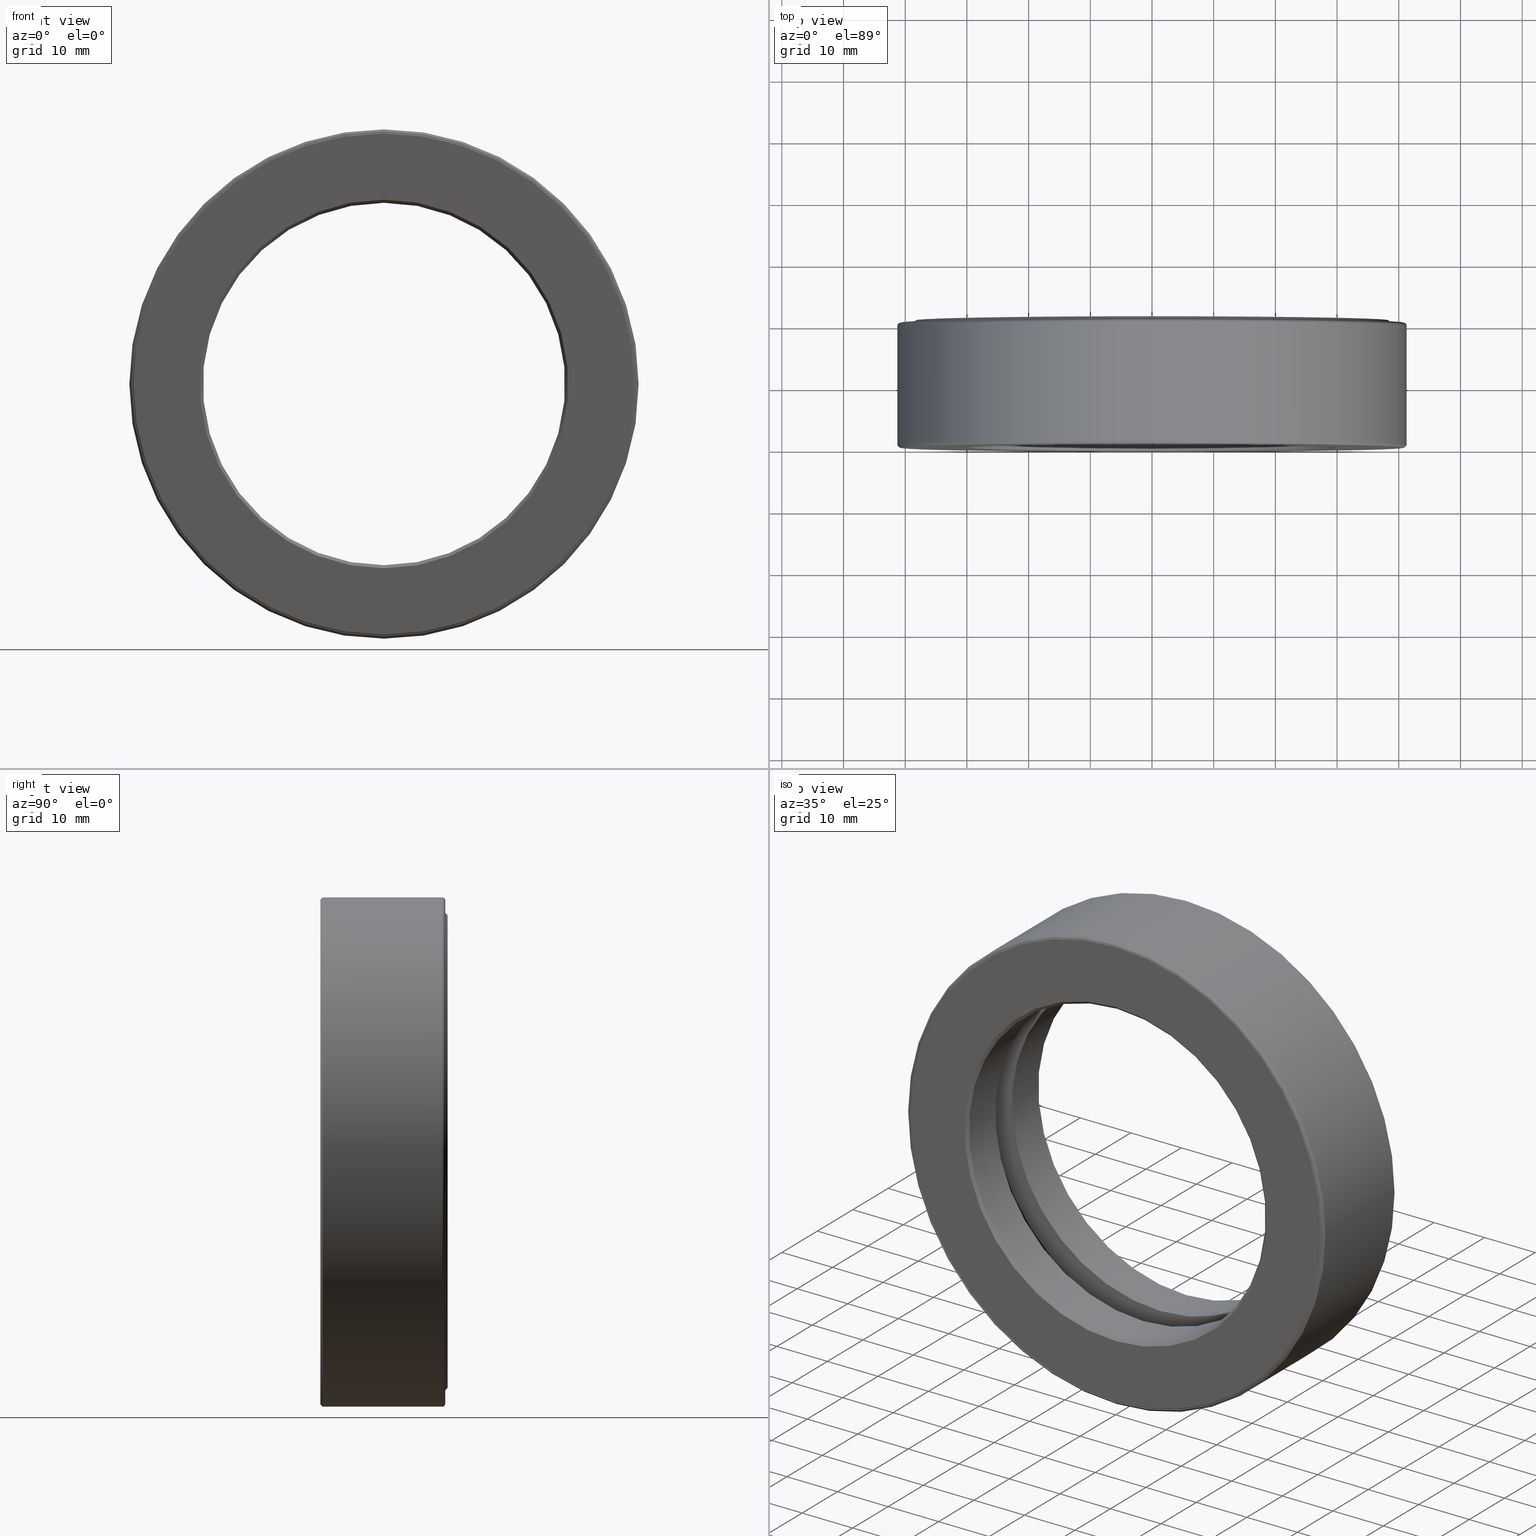
[diagram: canonical four-view strip — front | top / right | iso, engineering-drawing reading convention]
A machine part, canonical four-view strip (front | top / right | iso — engineering-drawing reading convention). The complete STEP part file that produces these views, byte-faithful:
ISO-10303-21;
HEADER;
FILE_DESCRIPTION (( 'STEP AP203' ),
    '1' );
FILE_NAME ('T-100-36.step',
    '2016-06-29T18:27:33',
    ( '' ),
    ( '' ),
    'SwSTEP 2.0',
    'SolidWorks 2016',
    '' );
FILE_SCHEMA (( 'CONFIG_CONTROL_DESIGN' ));
ENDSEC;

DATA;
#1 = DIRECTION ( 'NONE',  ( -0.0000000000000000000, 1.000000000000000000, -0.0000000000000000000 ) ) ;
#2 = VERTEX_POINT ( 'NONE', #593 ) ;
#3 = AXIS2_PLACEMENT_3D ( 'NONE', #582, #241, #568 ) ;
#4 = FACE_OUTER_BOUND ( 'NONE', #333, .T. ) ;
#5 = AXIS2_PLACEMENT_3D ( 'NONE', #280, #11, #371 ) ;
#6 = DIRECTION ( 'NONE',  ( -0.0000000000000000000, 1.000000000000000000, -0.0000000000000000000 ) ) ;
#7 = EDGE_LOOP ( 'NONE', ( #172 ) ) ;
#8 = FACE_OUTER_BOUND ( 'NONE', #401, .T. ) ;
#9 = FACE_OUTER_BOUND ( 'NONE', #432, .T. ) ;
#10 = DIRECTION ( 'NONE',  ( 0.0000000000000000000, 0.0000000000000000000, 1.000000000000000000 ) ) ;
#11 = DIRECTION ( 'NONE',  ( -0.0000000000000000000, 1.000000000000000000, -0.0000000000000000000 ) ) ;
#12 = ORIENTED_EDGE ( 'NONE', *, *, #518, .T. ) ;
#13 = DIRECTION ( 'NONE',  ( -0.0000000000000000000, 1.000000000000000000, 0.0000000000000000000 ) ) ;
#14 = FACE_OUTER_BOUND ( 'NONE', #503, .T. ) ;
#15 = DIRECTION ( 'NONE',  ( 0.0000000000000000000, 0.0000000000000000000, 1.000000000000000000 ) ) ;
#16 = DIRECTION ( 'NONE',  ( -0.0000000000000000000, 1.000000000000000000, -0.0000000000000000000 ) ) ;
#17 = PERSON_AND_ORGANIZATION ( #277, #100 ) ;
#18 = MANIFOLD_SOLID_BREP ( 'BALLS[2]', #341 ) ;
#19 = EDGE_LOOP ( 'NONE', ( #139 ) ) ;
#20 = FACE_OUTER_BOUND ( 'NONE', #400, .T. ) ;
#21 = DIRECTION ( 'NONE',  ( 0.0000000000000000000, 0.0000000000000000000, 1.000000000000000000 ) ) ;
#22 = AXIS2_PLACEMENT_3D ( 'NONE', #276, #470, #578 ) ;
#23 = DIRECTION ( 'NONE',  ( 0.0000000000000000000, 0.0000000000000000000, 1.000000000000000000 ) ) ;
#24 = EDGE_LOOP ( 'NONE', ( #193 ) ) ;
#25 = FACE_OUTER_BOUND ( 'NONE', #102, .T. ) ;
#26 = CIRCLE ( 'NONE', #317, 1.605000000000000000 ) ;
#27 = CC_DESIGN_PERSON_AND_ORGANIZATION_ASSIGNMENT ( #583, #255, ( #339 ) ) ;
#28 = APPLICATION_CONTEXT ( 'configuration controlled 3d designs of mechanical parts and assemblies' ) ;
#29 = APPLICATION_PROTOCOL_DEFINITION ( 'international standard', 'config_control_design', 1994, #28 ) ;
#30 = EDGE_LOOP ( 'NONE', ( #284 ) ) ;
#31 = ADVANCED_FACE ( 'NONE', ( #80, #8 ), #367, .F. ) ;
#32 =( LENGTH_UNIT ( ) NAMED_UNIT ( * ) SI_UNIT ( $, .METRE. ) );
#33 = EDGE_LOOP ( 'NONE', ( #137 ) ) ;
#34 = FACE_OUTER_BOUND ( 'NONE', #488, .T. ) ;
#35 = EDGE_CURVE ( 'NONE', #84, #84, #303, .T. ) ;
#36 = ADVANCED_FACE ( 'NONE', ( #56, #479 ), #489, .T. ) ;
#37 = FACE_BOUND ( 'NONE', #96, .T. ) ;
#38 = CIRCLE ( 'NONE', #551, 1.156250000000000000 ) ;
#39 = ADVANCED_FACE ( 'NONE', ( ), #309, .T. ) ;
#40 = MANIFOLD_SOLID_BREP ( 'Revolve3', #227 ) ;
#41 = PERSON_AND_ORGANIZATION ( #277, #100 ) ;
#42 = ORIENTED_EDGE ( 'NONE', *, *, #580, .F. ) ;
#43 = FACE_BOUND ( 'NONE', #463, .T. ) ;
#44 = EDGE_LOOP ( 'NONE', ( #431 ) ) ;
#45 = CARTESIAN_POINT ( 'NONE',  ( 0.0000000000000000000, 0.02000000000000019800, 1.156249999999999800 ) ) ;
#46 = VERTEX_POINT ( 'NONE', #538 ) ;
#47 = SECURITY_CLASSIFICATION ( '', '', #495 ) ;
#48 = CARTESIAN_POINT ( 'NONE',  ( 0.0000000000000000000, 0.5000000000000000000, 1.598000000000000100 ) ) ;
#49 = AXIS2_PLACEMENT_3D ( 'NONE', #185, #324, #141 ) ;
#50 = PLANE ( 'NONE',  #195 ) ;
#51 = EDGE_LOOP ( 'NONE', ( #221 ) ) ;
#52 = CIRCLE ( 'NONE', #390, 1.605000000000000000 ) ;
#53 = CARTESIAN_POINT ( 'NONE',  ( 0.0000000000000000000, 0.7974999999999998800, 0.0000000000000000000 ) ) ;
#54 = EDGE_LOOP ( 'NONE', ( #316 ) ) ;
#55 = CONICAL_SURFACE ( 'NONE', #125, 1.610000000000000100, 0.7853981633974362900 ) ;
#56 = FACE_OUTER_BOUND ( 'NONE', #563, .T. ) ;
#57 = CARTESIAN_POINT ( 'NONE',  ( 0.0000000000000000000, 0.3125000000000000000, 0.0000000000000000000 ) ) ;
#58 = DIRECTION ( 'NONE',  ( 0.0000000000000000000, 0.0000000000000000000, 1.000000000000000000 ) ) ;
#59 = DIRECTION ( 'NONE',  ( -0.0000000000000000000, 1.000000000000000000, -0.0000000000000000000 ) ) ;
#60 = DIRECTION ( 'NONE',  ( 0.0000000000000000000, 0.0000000000000000000, 1.000000000000000000 ) ) ;
#61 = EDGE_CURVE ( 'NONE', #248, #248, #423, .T. ) ;
#62 = CARTESIAN_POINT ( 'NONE',  ( 0.0000000000000000000, 0.3124999999999998900, 0.0000000000000000000 ) ) ;
#63 = CARTESIAN_POINT ( 'NONE',  ( 0.0000000000000000000, 0.7924999999999997600, 0.0000000000000000000 ) ) ;
#64 = SPHERICAL_SURFACE ( 'NONE', #162, 0.1562500000000000000 ) ;
#65 = CIRCLE ( 'NONE', #553, 1.314750000000000300 ) ;
#66 = PLANE ( 'NONE',  #358 ) ;
#67 = EDGE_CURVE ( 'NONE', #112, #112, #302, .T. ) ;
#68 = CARTESIAN_POINT ( 'NONE',  ( 0.0000000000000000000, 0.8124999999999998900, 1.509999999999999800 ) ) ;
#69 = COORDINATED_UNIVERSAL_TIME_OFFSET ( 5, 0, .BEHIND. ) ;
#70 = EDGE_LOOP ( 'NONE', ( #584 ) ) ;
#71 = CIRCLE ( 'NONE', #327, 1.545000000000000200 ) ;
#72 = CARTESIAN_POINT ( 'NONE',  ( 0.0000000000000000000, 0.5000000000000000000, 0.0000000000000000000 ) ) ;
#73 = EDGE_LOOP ( 'NONE', ( #250 ) ) ;
#74 = CARTESIAN_POINT ( 'NONE',  ( 0.0000000000000000000, 0.7974999999999998800, 0.0000000000000000000 ) ) ;
#75 = CARTESIAN_POINT ( 'NONE',  ( 0.0000000000000000000, 0.0000000000000000000, 1.176250000000000000 ) ) ;
#76 = AXIS2_PLACEMENT_3D ( 'NONE', #62, #426, #156 ) ;
#77 = VERTEX_POINT ( 'NONE', #590 ) ;
#78 = CARTESIAN_POINT ( 'NONE',  ( 0.0000000000000000000, 0.5000000000000000000, 1.564750000000000100 ) ) ;
#79 = APPLICATION_CONTEXT ( 'configuration controlled 3d designs of mechanical parts and assemblies' ) ;
#80 = FACE_OUTER_BOUND ( 'NONE', #365, .T. ) ;
#81 = ORIENTED_EDGE ( 'NONE', *, *, #483, .T. ) ;
#82 = ADVANCED_FACE ( 'NONE', ( #184, #360 ), #157, .F. ) ;
#83 = AXIS2_PLACEMENT_3D ( 'NONE', #560, #318, #10 ) ;
#84 = VERTEX_POINT ( 'NONE', #562 ) ;
#85 = VERTEX_POINT ( 'NONE', #402 ) ;
#86 = ADVANCED_FACE ( 'NONE', ( #187, #504 ), #265, .T. ) ;
#87 = AXIS2_PLACEMENT_3D ( 'NONE', #576, #525, #422 ) ;
#88 = ADVANCED_FACE ( 'NONE', ( ), #64, .T. ) ;
#89 = EDGE_LOOP ( 'NONE', ( #168 ) ) ;
#90 = CYLINDRICAL_SURFACE ( 'NONE', #353, 1.597999999999999600 ) ;
#91 = CARTESIAN_POINT ( 'NONE',  ( 0.0000000000000000000, 0.8125000000000000000, 1.176250000000000200 ) ) ;
#92 = DIRECTION ( 'NONE',  ( -0.0000000000000000000, 1.000000000000000000, -0.0000000000000000000 ) ) ;
#93 = AXIS2_PLACEMENT_3D ( 'NONE', #466, #233, #323 ) ;
#94 = PERSON_AND_ORGANIZATION ( #277, #100 ) ;
#95 = ORIENTED_EDGE ( 'NONE', *, *, #370, .F. ) ;
#96 = EDGE_LOOP ( 'NONE', ( #542 ) ) ;
#97 = CARTESIAN_POINT ( 'NONE',  ( 0.0000000000000000000, 0.7774999999999998600, 0.0000000000000000000 ) ) ;
#98 = SPHERICAL_SURFACE ( 'NONE', #491, 0.1562500000000000000 ) ;
#99 = PRODUCT_DEFINITION ( 'UNKNOWN', '', #339, #210 ) ;
#100 = ORGANIZATION ( 'UNSPECIFIED', 'UNSPECIFIED', '' ) ;
#101 = EDGE_CURVE ( 'NONE', #602, #602, #342, .T. ) ;
#102 = EDGE_LOOP ( 'NONE', ( #177 ) ) ;
#103 = FACE_OUTER_BOUND ( 'NONE', #24, .T. ) ;
#104 = DIRECTION ( 'NONE',  ( 0.0000000000000000000, 0.0000000000000000000, -1.000000000000000000 ) ) ;
#105 = DIRECTION ( 'NONE',  ( -0.0000000000000000000, 1.000000000000000000, -0.0000000000000000000 ) ) ;
#106 = AXIS2_PLACEMENT_3D ( 'NONE', #380, #474, #531 ) ;
#107 = DIRECTION ( 'NONE',  ( 0.0000000000000000000, 0.0000000000000000000, 1.000000000000000000 ) ) ;
#108 = DIRECTION ( 'NONE',  ( 0.0000000000000000000, 0.0000000000000000000, 1.000000000000000000 ) ) ;
#109 = CARTESIAN_POINT ( 'NONE',  ( 0.0000000000000000000, 0.7974999999999998800, 0.0000000000000000000 ) ) ;
#110 = EDGE_LOOP ( 'NONE', ( #477 ) ) ;
#111 = EDGE_LOOP ( 'NONE', ( #228 ) ) ;
#112 = VERTEX_POINT ( 'NONE', #270 ) ;
#113 = CARTESIAN_POINT ( 'NONE',  ( 0.0000000000000000000, 0.3125000000000000000, 1.156250000000000000 ) ) ;
#114 = AXIS2_PLACEMENT_3D ( 'NONE', #254, #338, #202 ) ;
#115 = EDGE_CURVE ( 'NONE', #572, #572, #533, .T. ) ;
#116 = CARTESIAN_POINT ( 'NONE',  ( -1.508058077279820500E-014, 0.4062500000000000000, -1.439750000000000100 ) ) ;
#117 = CARTESIAN_POINT ( 'NONE',  ( 0.0000000000000000000, 0.02000000000000019800, 0.0000000000000000000 ) ) ;
#118 = DIRECTION ( 'NONE',  ( 0.0000000000000000000, -1.000000000000000000, 0.0000000000000000000 ) ) ;
#119 = CARTESIAN_POINT ( 'NONE',  ( -4.894218814401523900E-032, -4.321868896226666600E-017, 0.0000000000000000000 ) ) ;
#120 = FACE_OUTER_BOUND ( 'NONE', #70, .T. ) ;
#121 = CIRCLE ( 'NONE', #249, 1.624999999999999800 ) ;
#122 = AXIS2_PLACEMENT_3D ( 'NONE', #150, #328, #60 ) ;
#123 = DIRECTION ( 'NONE',  ( 0.0000000000000000000, 0.0000000000000000000, 1.000000000000000000 ) ) ;
#124 = APPROVAL_ROLE ( '' ) ;
#125 = AXIS2_PLACEMENT_3D ( 'NONE', #379, #247, #478 ) ;
#126 = MANIFOLD_SOLID_BREP ( 'Revolve2[1]', #506 ) ;
#127 = CARTESIAN_POINT ( 'NONE',  ( 0.0000000000000000000, 0.7245000000000001400, 0.0000000000000000000 ) ) ;
#128 = APPROVAL_PERSON_ORGANIZATION ( #17, #375, #124 ) ;
#129 = EDGE_LOOP ( 'NONE', ( #464 ) ) ;
#130 = EDGE_LOOP ( 'NONE', ( #236 ) ) ;
#131 = AXIS2_PLACEMENT_3D ( 'NONE', #511, #142, #559 ) ;
#132 = FACE_OUTER_BOUND ( 'NONE', #267, .T. ) ;
#133 = ADVANCED_FACE ( 'NONE', ( #313, #393 ), #192, .F. ) ;
#134 = CARTESIAN_POINT ( 'NONE',  ( 0.0000000000000000000, -8.694983911032602800E-017, 1.605000000000000000 ) ) ;
#135 = VERTEX_POINT ( 'NONE', #449 ) ;
#136 = ADVANCED_FACE ( 'NONE', ( #120, #258 ), #407, .F. ) ;
#137 = ORIENTED_EDGE ( 'NONE', *, *, #263, .T. ) ;
#138 = AXIS2_PLACEMENT_3D ( 'NONE', #575, #158, #428 ) ;
#139 = ORIENTED_EDGE ( 'NONE', *, *, #67, .T. ) ;
#140 = ORIENTED_EDGE ( 'NONE', *, *, #546, .F. ) ;
#141 = DIRECTION ( 'NONE',  ( 0.0000000000000000000, -0.0000000000000000000, -1.000000000000000000 ) ) ;
#142 = DIRECTION ( 'NONE',  ( -0.0000000000000000000, 1.000000000000000000, -0.0000000000000000000 ) ) ;
#143 = EDGE_CURVE ( 'NONE', #492, #492, #366, .T. ) ;
#144 = PERSON_AND_ORGANIZATION ( #277, #100 ) ;
#145 = EDGE_LOOP ( 'NONE', ( #591 ) ) ;
#146 = CIRCLE ( 'NONE', #5, 1.625000000000000000 ) ;
#147 = FACE_BOUND ( 'NONE', #89, .T. ) ;
#148 = CARTESIAN_POINT ( 'NONE',  ( 0.0000000000000000000, 0.5000000000000000000, 0.0000000000000000000 ) ) ;
#149 = CC_DESIGN_PERSON_AND_ORGANIZATION_ASSIGNMENT ( #181, #304, ( #339 ) ) ;
#150 = CARTESIAN_POINT ( 'NONE',  ( 0.0000000000000000000, 0.8125000000000000000, 0.0000000000000000000 ) ) ;
#151 = AXIS2_PLACEMENT_3D ( 'NONE', #97, #467, #513 ) ;
#152 = COORDINATED_UNIVERSAL_TIME_OFFSET ( 5, 0, .BEHIND. ) ;
#153 = DIRECTION ( 'NONE',  ( -0.0000000000000000000, 1.000000000000000000, -0.0000000000000000000 ) ) ;
#154 = ORIENTED_EDGE ( 'NONE', *, *, #507, .F. ) ;
#155 = EDGE_LOOP ( 'NONE', ( #12 ) ) ;
#156 = DIRECTION ( 'NONE',  ( 0.0000000000000000000, -0.0000000000000000000, -1.000000000000000000 ) ) ;
#157 = PLANE ( 'NONE',  #606 ) ;
#158 = DIRECTION ( 'NONE',  ( -0.0000000000000000000, 1.000000000000000000, -0.0000000000000000000 ) ) ;
#159 = DIRECTION ( 'NONE',  ( 0.0000000000000000000, 0.0000000000000000000, 1.000000000000000000 ) ) ;
#160 = AXIS2_PLACEMENT_3D ( 'NONE', #389, #253, #595 ) ;
#161 = MANIFOLD_SOLID_BREP ( 'BALLS[3]', #186 ) ;
#162 = AXIS2_PLACEMENT_3D ( 'NONE', #476, #104, #242 ) ;
#163 = FACE_OUTER_BOUND ( 'NONE', #544, .T. ) ;
#164 = DIRECTION ( 'NONE',  ( 0.0000000000000000000, 0.0000000000000000000, 1.000000000000000000 ) ) ;
#165 = DIRECTION ( 'NONE',  ( 0.0000000000000000000, -0.0000000000000000000, -1.000000000000000000 ) ) ;
#166 = EDGE_CURVE ( 'NONE', #526, #526, #222, .T. ) ;
#167 = LOCAL_TIME ( 14, 27, 33.00000000000000000, #381 ) ;
#168 = ORIENTED_EDGE ( 'NONE', *, *, #143, .F. ) ;
#169 = FACE_OUTER_BOUND ( 'NONE', #293, .T. ) ;
#170 = AXIS2_PLACEMENT_3D ( 'NONE', #481, #577, #294 ) ;
#171 = APPROVAL_STATUS ( 'not_yet_approved' ) ;
#172 = ORIENTED_EDGE ( 'NONE', *, *, #263, .F. ) ;
#173 = ADVANCED_FACE ( 'NONE', ( #103, #592 ), #273, .F. ) ;
#174 = CARTESIAN_POINT ( 'NONE',  ( 0.0000000000000000000, 0.7774999999999998600, 1.605000000000000000 ) ) ;
#175 = ADVANCED_FACE ( 'NONE', ( #25, #37 ), #55, .T. ) ;
#176 = CARTESIAN_POINT ( 'NONE',  ( 0.0000000000000000000, 0.01499999999999997700, 1.624999999999999800 ) ) ;
#177 = ORIENTED_EDGE ( 'NONE', *, *, #483, .F. ) ;
#178 = SPHERICAL_SURFACE ( 'NONE', #493, 0.1562500000000000000 ) ;
#179 = CIRCLE ( 'NONE', #138, 1.610000000000000100 ) ;
#180 = ADVANCED_FACE ( 'NONE', ( ), #178, .T. ) ;
#181 = PERSON_AND_ORGANIZATION ( #277, #100 ) ;
#182 = ORIENTED_EDGE ( 'NONE', *, *, #143, .T. ) ;
#183 = TOROIDAL_SURFACE ( 'NONE', #151, 1.605000000000000000, 0.02000000000000005900 ) ;
#184 = FACE_BOUND ( 'NONE', #110, .T. ) ;
#185 = CARTESIAN_POINT ( 'NONE',  ( 0.0000000000000000000, 0.5000000000000000000, 0.0000000000000000000 ) ) ;
#186 = CLOSED_SHELL ( 'NONE', ( #603 ) ) ;
#187 = FACE_OUTER_BOUND ( 'NONE', #7, .T. ) ;
#188 = AXIS2_PLACEMENT_3D ( 'NONE', #521, #475, #123 ) ;
#189 = DIRECTION ( 'NONE',  ( -0.0000000000000000000, 1.000000000000000000, -0.0000000000000000000 ) ) ;
#190 = EDGE_CURVE ( 'NONE', #369, #369, #71, .T. ) ;
#191 = APPROVAL_PERSON_ORGANIZATION ( #41, #480, #596 ) ;
#192 = TOROIDAL_SURFACE ( 'NONE', #3, 1.439750000000000100, 0.1562499999999999400 ) ;
#193 = ORIENTED_EDGE ( 'NONE', *, *, #346, .F. ) ;
#194 = DIRECTION ( 'NONE',  ( -0.0000000000000000000, 1.000000000000000000, -0.0000000000000000000 ) ) ;
#195 = AXIS2_PLACEMENT_3D ( 'NONE', #290, #588, #424 ) ;
#196 = CARTESIAN_POINT ( 'NONE',  ( 0.0000000000000000000, 0.0000000000000000000, 0.0000000000000000000 ) ) ;
#197 = DIRECTION ( 'NONE',  ( 0.0000000000000000000, 0.0000000000000000000, 1.000000000000000000 ) ) ;
#198 = ORIENTED_EDGE ( 'NONE', *, *, #190, .T. ) ;
#199 = ORIENTED_EDGE ( 'NONE', *, *, #443, .T. ) ;
#200 = FACE_OUTER_BOUND ( 'NONE', #376, .T. ) ;
#201 = PLANE ( 'NONE',  #76 ) ;
#202 = DIRECTION ( 'NONE',  ( 0.0000000000000000000, 0.0000000000000000000, 1.000000000000000000 ) ) ;
#203 = DIRECTION ( 'NONE',  ( -0.0000000000000000000, 1.000000000000000000, -0.0000000000000000000 ) ) ;
#204 = CARTESIAN_POINT ( 'NONE',  ( 0.0000000000000000000, 0.0000000000000000000, 0.0000000000000000000 ) ) ;
#205 = ORIENTED_EDGE ( 'NONE', *, *, #296, .F. ) ;
#206 = AXIS2_PLACEMENT_3D ( 'NONE', #196, #16, #21 ) ;
#207 = DIRECTION ( 'NONE',  ( -0.0000000000000000000, 1.000000000000000000, 0.0000000000000000000 ) ) ;
#208 = FACE_OUTER_BOUND ( 'NONE', #111, .T. ) ;
#209 = DIMENSIONAL_EXPONENTS ( 1.000000000000000000, 0.0000000000000000000, 0.0000000000000000000, 0.0000000000000000000, 0.0000000000000000000, 0.0000000000000000000, 0.0000000000000000000 ) ;
#210 = DESIGN_CONTEXT ( 'detailed design', #28, 'design' ) ;
#211 = SHAPE_DEFINITION_REPRESENTATION ( #421, #307 ) ;
#212 = EDGE_LOOP ( 'NONE', ( #42 ) ) ;
#213 = ADVANCED_FACE ( 'NONE', ( #237, #515 ), #520, .T. ) ;
#214 = EDGE_CURVE ( 'NONE', #501, #501, #146, .T. ) ;
#215 = EDGE_LOOP ( 'NONE', ( #199 ) ) ;
#216 = VERTEX_POINT ( 'NONE', #75 ) ;
#217 = VERTEX_POINT ( 'NONE', #134 ) ;
#218 = ADVANCED_FACE ( 'NONE', ( #285, #43 ), #271, .T. ) ;
#219 = AXIS2_PLACEMENT_3D ( 'NONE', #388, #283, #23 ) ;
#220 = ADVANCED_FACE ( 'NONE', ( #543, #169 ), #183, .T. ) ;
#221 = ORIENTED_EDGE ( 'NONE', *, *, #546, .T. ) ;
#222 = CIRCLE ( 'NONE', #122, 1.176250000000000200 ) ;
#223 = AXIS2_PLACEMENT_3D ( 'NONE', #510, #92, #229 ) ;
#224 = FACE_OUTER_BOUND ( 'NONE', #33, .T. ) ;
#225 = ADVANCED_FACE ( 'NONE', ( #337, #395 ), #418, .T. ) ;
#226 = DATE_AND_TIME ( #349, #315 ) ;
#227 = CLOSED_SHELL ( 'NONE', ( #88 ) ) ;
#228 = ORIENTED_EDGE ( 'NONE', *, *, #61, .F. ) ;
#229 = DIRECTION ( 'NONE',  ( 0.0000000000000000000, 0.0000000000000000000, 1.000000000000000000 ) ) ;
#230 = PLANE ( 'NONE',  #453 ) ;
#231 = CONICAL_SURFACE ( 'NONE', #435, 1.156249999999999800, 0.7853981633974482800 ) ;
#232 = VERTEX_POINT ( 'NONE', #406 ) ;
#233 = DIRECTION ( 'NONE',  ( 6.982962677686262800E-015, -0.0000000000000000000, 1.000000000000000000 ) ) ;
#234 = CARTESIAN_POINT ( 'NONE',  ( -1.010132666352421300E-032, -8.722717257869222100E-017, 0.0000000000000000000 ) ) ;
#235 = VERTEX_POINT ( 'NONE', #298 ) ;
#236 = ORIENTED_EDGE ( 'NONE', *, *, #411, .F. ) ;
#237 = FACE_OUTER_BOUND ( 'NONE', #550, .T. ) ;
#238 = DIRECTION ( 'NONE',  ( 0.0000000000000000000, -0.0000000000000000000, -1.000000000000000000 ) ) ;
#239 = FACE_BOUND ( 'NONE', #410, .T. ) ;
#240 = CC_DESIGN_SECURITY_CLASSIFICATION ( #47, ( #339 ) ) ;
#241 = DIRECTION ( 'NONE',  ( -0.0000000000000000000, 1.000000000000000000, -0.0000000000000000000 ) ) ;
#242 = DIRECTION ( 'NONE',  ( 1.000000000000000000, 0.0000000000000000000, 0.0000000000000000000 ) ) ;
#243 = LOCAL_TIME ( 14, 27, 33.00000000000000000, #69 ) ;
#244 = EDGE_LOOP ( 'NONE', ( #409 ) ) ;
#245 = EDGE_LOOP ( 'NONE', ( #359 ) ) ;
#246 = DIRECTION ( 'NONE',  ( 0.0000000000000000000, 0.0000000000000000000, 1.000000000000000000 ) ) ;
#247 = DIRECTION ( 'NONE',  ( -0.0000000000000000000, 1.000000000000000000, -0.0000000000000000000 ) ) ;
#248 = VERTEX_POINT ( 'NONE', #566 ) ;
#249 = AXIS2_PLACEMENT_3D ( 'NONE', #343, #203, #437 ) ;
#250 = ORIENTED_EDGE ( 'NONE', *, *, #252, .F. ) ;
#251 = DIRECTION ( 'NONE',  ( 0.0000000000000000000, 0.0000000000000000000, 1.000000000000000000 ) ) ;
#252 = EDGE_CURVE ( 'NONE', #442, #442, #335, .T. ) ;
#253 = DIRECTION ( 'NONE',  ( -0.0000000000000000000, 1.000000000000000000, -0.0000000000000000000 ) ) ;
#254 = CARTESIAN_POINT ( 'NONE',  ( -3.325283138355383700E-016, 0.8124999999999998900, 0.0000000000000000000 ) ) ;
#255 = PERSON_AND_ORGANIZATION_ROLE ( 'design_supplier' ) ;
#256 = PERSON_AND_ORGANIZATION_ROLE ( 'design_owner' ) ;
#257 = DATE_AND_TIME ( #329, #167 ) ;
#258 = FACE_BOUND ( 'NONE', #212, .T. ) ;
#259 = CLOSED_SHELL ( 'NONE', ( #225, #454, #496, #452, #136, #213, #218, #310 ) ) ;
#260 = CIRCLE ( 'NONE', #106, 1.605000000000000000 ) ;
#261 = ADVANCED_FACE ( 'NONE', ( #573, #239 ), #230, .F. ) ;
#262 = VERTEX_POINT ( 'NONE', #78 ) ;
#263 = EDGE_CURVE ( 'NONE', #77, #77, #52, .T. ) ;
#264 = EDGE_LOOP ( 'NONE', ( #556 ) ) ;
#265 = CONICAL_SURFACE ( 'NONE', #312, 1.599999999999999600, 0.7853981633974335100 ) ;
#266 = CALENDAR_DATE ( 2016, 29, 6 ) ;
#267 = EDGE_LOOP ( 'NONE', ( #350 ) ) ;
#268 = ORIENTED_EDGE ( 'NONE', *, *, #530, .F. ) ;
#269 = AXIS2_PLACEMENT_3D ( 'NONE', #332, #286, #107 ) ;
#270 = CARTESIAN_POINT ( 'NONE',  ( 0.0000000000000000000, 0.7974999999999998800, 1.605000000000000000 ) ) ;
#271 = CONICAL_SURFACE ( 'NONE', #278, 1.509999999999999800, 0.7853981633974498300 ) ;
#272 = CARTESIAN_POINT ( 'NONE',  ( 0.0000000000000000000, 0.0000000000000000000, 0.0000000000000000000 ) ) ;
#273 = CYLINDRICAL_SURFACE ( 'NONE', #269, 1.605000000000000000 ) ;
#274 = DIRECTION ( 'NONE',  ( 0.0000000000000000000, 0.0000000000000000000, -1.000000000000000000 ) ) ;
#275 = CYLINDRICAL_SURFACE ( 'NONE', #219, 1.156250000000000000 ) ;
#276 = CARTESIAN_POINT ( 'NONE',  ( 0.0000000000000000000, 0.02000000000000019800, 0.0000000000000000000 ) ) ;
#277 = PERSON ( 'UNSPECIFIED', 'UNSPECIFIED', 'UNSPECIFIED', ('UNSPECIFIED'), ('UNSPECIFIED'), ('UNSPECIFIED') ) ;
#278 = AXIS2_PLACEMENT_3D ( 'NONE', #392, #118, #274 ) ;
#279 = AXIS2_PLACEMENT_3D ( 'NONE', #53, #291, #386 ) ;
#280 = CARTESIAN_POINT ( 'NONE',  ( 0.0000000000000000000, 0.7774999999999998600, 0.0000000000000000000 ) ) ;
#281 = DIRECTION ( 'NONE',  ( 0.0000000000000000000, 0.0000000000000000000, 1.000000000000000000 ) ) ;
#282 = DATE_AND_TIME ( #266, #243 ) ;
#283 = DIRECTION ( 'NONE',  ( -0.0000000000000000000, 1.000000000000000000, -0.0000000000000000000 ) ) ;
#284 = ORIENTED_EDGE ( 'NONE', *, *, #580, .T. ) ;
#285 = FACE_OUTER_BOUND ( 'NONE', #264, .T. ) ;
#286 = DIRECTION ( 'NONE',  ( -0.0000000000000000000, 1.000000000000000000, -0.0000000000000000000 ) ) ;
#287 = ORIENTED_EDGE ( 'NONE', *, *, #101, .F. ) ;
#288 = PLANE ( 'NONE',  #587 ) ;
#289 = DIRECTION ( 'NONE',  ( -3.491481338843131400E-015, 0.0000000000000000000, -1.000000000000000000 ) ) ;
#290 = CARTESIAN_POINT ( 'NONE',  ( 0.0000000000000000000, 0.3125000000000000000, 0.0000000000000000000 ) ) ;
#291 = DIRECTION ( 'NONE',  ( -0.0000000000000000000, 1.000000000000000000, -0.0000000000000000000 ) ) ;
#292 = AXIS2_PLACEMENT_3D ( 'NONE', #539, #436, #434 ) ;
#293 = EDGE_LOOP ( 'NONE', ( #382 ) ) ;
#294 = DIRECTION ( 'NONE',  ( 0.0000000000000000000, 0.0000000000000000000, 1.000000000000000000 ) ) ;
#295 = FACE_BOUND ( 'NONE', #245, .T. ) ;
#296 = EDGE_CURVE ( 'NONE', #85, #85, #65, .T. ) ;
#297 = DIRECTION ( 'NONE',  ( 0.0000000000000000000, -1.000000000000000000, 0.0000000000000000000 ) ) ;
#298 = CARTESIAN_POINT ( 'NONE',  ( 0.0000000000000000000, 0.7924999999999997600, 1.156250000000000000 ) ) ;
#299 = DIRECTION ( 'NONE',  ( 0.0000000000000000000, 0.0000000000000000000, 1.000000000000000000 ) ) ;
#300 = DATE_AND_TIME ( #461, #438 ) ;
#301 = ORIENTED_EDGE ( 'NONE', *, *, #370, .T. ) ;
#302 = CIRCLE ( 'NONE', #279, 1.605000000000000000 ) ;
#303 = CIRCLE ( 'NONE', #223, 1.599999999999999600 ) ;
#304 = PERSON_AND_ORGANIZATION_ROLE ( 'creator' ) ;
#305 = DIRECTION ( 'NONE',  ( 0.0000000000000000000, 0.0000000000000000000, 1.000000000000000000 ) ) ;
#306 = CARTESIAN_POINT ( 'NONE',  ( 0.0000000000000000000, 0.0000000000000000000, 0.0000000000000000000 ) ) ;
#307 = ADVANCED_BREP_SHAPE_REPRESENTATION ( 'T-100-36', ( #126, #581, #40, #362, #18, #161, #408 ), #363 ) ;
#308 = ADVANCED_FACE ( 'NONE', ( #594, #4 ), #50, .F. ) ;
#309 = SPHERICAL_SURFACE ( 'NONE', #93, 0.1562500000000000000 ) ;
#310 = ADVANCED_FACE ( 'NONE', ( #384, #208 ), #90, .T. ) ;
#311 = APPROVAL_DATE_TIME ( #300, #468 ) ;
#312 = AXIS2_PLACEMENT_3D ( 'NONE', #519, #528, #58 ) ;
#313 = FACE_OUTER_BOUND ( 'NONE', #472, .T. ) ;
#314 = ORIENTED_EDGE ( 'NONE', *, *, #166, .F. ) ;
#315 = LOCAL_TIME ( 14, 27, 33.00000000000000000, #152 ) ;
#316 = ORIENTED_EDGE ( 'NONE', *, *, #252, .T. ) ;
#317 = AXIS2_PLACEMENT_3D ( 'NONE', #334, #527, #164 ) ;
#318 = DIRECTION ( 'NONE',  ( -0.0000000000000000000, 1.000000000000000000, -0.0000000000000000000 ) ) ;
#319 = ORIENTED_EDGE ( 'NONE', *, *, #346, .T. ) ;
#320 = DIRECTION ( 'NONE',  ( 0.0000000000000000000, 0.0000000000000000000, 1.000000000000000000 ) ) ;
#321 = CIRCLE ( 'NONE', #170, 1.605000000000000000 ) ;
#322 = CARTESIAN_POINT ( 'NONE',  ( 0.0000000000000000000, 0.7774999999999998600, 1.625000000000000000 ) ) ;
#323 = DIRECTION ( 'NONE',  ( -1.000000000000000000, 0.0000000000000000000, 6.982962677686262800E-015 ) ) ;
#324 = DIRECTION ( 'NONE',  ( 0.0000000000000000000, -1.000000000000000000, 0.0000000000000000000 ) ) ;
#325 = VERTEX_POINT ( 'NONE', #68 ) ;
#326 = CIRCLE ( 'NONE', #412, 1.176250000000000000 ) ;
#327 = AXIS2_PLACEMENT_3D ( 'NONE', #74, #429, #589 ) ;
#328 = DIRECTION ( 'NONE',  ( -0.0000000000000000000, 1.000000000000000000, -0.0000000000000000000 ) ) ;
#329 = CALENDAR_DATE ( 2016, 29, 6 ) ;
#330 = DIRECTION ( 'NONE',  ( -0.0000000000000000000, 1.000000000000000000, 0.0000000000000000000 ) ) ;
#331 = EDGE_LOOP ( 'NONE', ( #447 ) ) ;
#332 = CARTESIAN_POINT ( 'NONE',  ( 0.0000000000000000000, 0.0000000000000000000, 0.0000000000000000000 ) ) ;
#333 = EDGE_LOOP ( 'NONE', ( #351 ) ) ;
#334 = CARTESIAN_POINT ( 'NONE',  ( 0.0000000000000000000, 0.7774999999999998600, 0.0000000000000000000 ) ) ;
#335 = CIRCLE ( 'NONE', #83, 1.156250000000000000 ) ;
#336 = CARTESIAN_POINT ( 'NONE',  ( 0.0000000000000000000, 0.7774999999999998600, 0.0000000000000000000 ) ) ;
#337 = FACE_BOUND ( 'NONE', #145, .T. ) ;
#338 = DIRECTION ( 'NONE',  ( -0.0000000000000000000, 1.000000000000000000, 0.0000000000000000000 ) ) ;
#339 = PRODUCT_DEFINITION_FORMATION_WITH_SPECIFIED_SOURCE ( 'ANY', '', #579, .NOT_KNOWN. ) ;
#340 = PLANE ( 'NONE',  #597 ) ;
#341 = CLOSED_SHELL ( 'NONE', ( #39 ) ) ;
#342 = CIRCLE ( 'NONE', #22, 1.156249999999999800 ) ;
#343 = CARTESIAN_POINT ( 'NONE',  ( 0.0000000000000000000, 0.01499999999999997700, 0.0000000000000000000 ) ) ;
#344 = FACE_OUTER_BOUND ( 'NONE', #30, .T. ) ;
#345 = APPROVAL_ROLE ( '' ) ;
#346 = EDGE_CURVE ( 'NONE', #232, #232, #321, .T. ) ;
#347 = DATE_TIME_ROLE ( 'classification_date' ) ;
#348 = APPROVAL_STATUS ( 'not_yet_approved' ) ;
#349 = CALENDAR_DATE ( 2016, 29, 6 ) ;
#350 = ORIENTED_EDGE ( 'NONE', *, *, #35, .F. ) ;
#351 = ORIENTED_EDGE ( 'NONE', *, *, #296, .T. ) ;
#352 = CIRCLE ( 'NONE', #292, 1.564750000000000100 ) ;
#353 = AXIS2_PLACEMENT_3D ( 'NONE', #420, #105, #159 ) ;
#354 = ADVANCED_FACE ( 'NONE', ( #147, #34 ), #201, .F. ) ;
#355 = DIRECTION ( 'NONE',  ( 1.000000000000000000, 0.0000000000000000000, 0.0000000000000000000 ) ) ;
#356 = AXIS2_PLACEMENT_3D ( 'NONE', #373, #189, #413 ) ;
#357 = AXIS2_PLACEMENT_3D ( 'NONE', #204, #537, #299 ) ;
#358 = AXIS2_PLACEMENT_3D ( 'NONE', #486, #297, #165 ) ;
#359 = ORIENTED_EDGE ( 'NONE', *, *, #101, .T. ) ;
#360 = FACE_OUTER_BOUND ( 'NONE', #19, .T. ) ;
#361 = DIRECTION ( 'NONE',  ( 0.0000000000000000000, 0.0000000000000000000, 1.000000000000000000 ) ) ;
#362 = MANIFOLD_SOLID_BREP ( 'BALLS[1]', #570 ) ;
#363 =( GEOMETRIC_REPRESENTATION_CONTEXT ( 3 ) GLOBAL_UNCERTAINTY_ASSIGNED_CONTEXT ( ( #462 ) ) GLOBAL_UNIT_ASSIGNED_CONTEXT ( ( #398, #440, #540 ) ) REPRESENTATION_CONTEXT ( 'NONE', 'WORKASPACE' ) );
#364 = PERSON_AND_ORGANIZATION ( #277, #100 ) ;
#365 = EDGE_LOOP ( 'NONE', ( #532 ) ) ;
#366 = CIRCLE ( 'NONE', #87, 1.564750000000000100 ) ;
#367 = CYLINDRICAL_SURFACE ( 'NONE', #405, 1.545000000000000200 ) ;
#368 = FACE_BOUND ( 'NONE', #155, .T. ) ;
#369 = VERTEX_POINT ( 'NONE', #425 ) ;
#370 = EDGE_CURVE ( 'NONE', #217, #217, #260, .T. ) ;
#371 = DIRECTION ( 'NONE',  ( 0.0000000000000000000, 0.0000000000000000000, 1.000000000000000000 ) ) ;
#372 = DIRECTION ( 'NONE',  ( 0.0000000000000000000, 0.0000000000000000000, 1.000000000000000000 ) ) ;
#373 = CARTESIAN_POINT ( 'NONE',  ( 0.0000000000000000000, 0.7924999999999997600, 0.0000000000000000000 ) ) ;
#374 = DATE_AND_TIME ( #498, #555 ) ;
#375 = APPROVAL ( #171, 'UNSPECIFIED' ) ;
#376 = EDGE_LOOP ( 'NONE', ( #268 ) ) ;
#377 = CARTESIAN_POINT ( 'NONE',  ( 0.0000000000000000000, 0.8124999999999998900, 0.0000000000000000000 ) ) ;
#378 = CIRCLE ( 'NONE', #160, 1.545000000000000200 ) ;
#379 = CARTESIAN_POINT ( 'NONE',  ( 0.0000000000000000000, -8.750450604705842700E-017, 0.0000000000000000000 ) ) ;
#380 = CARTESIAN_POINT ( 'NONE',  ( 0.0000000000000000000, -8.694983911032602800E-017, 0.0000000000000000000 ) ) ;
#381 = COORDINATED_UNIVERSAL_TIME_OFFSET ( 5, 0, .BEHIND. ) ;
#382 = ORIENTED_EDGE ( 'NONE', *, *, #214, .T. ) ;
#383 = DIRECTION ( 'NONE',  ( 0.0000000000000000000, 0.0000000000000000000, 1.000000000000000000 ) ) ;
#384 = FACE_OUTER_BOUND ( 'NONE', #244, .T. ) ;
#385 = CARTESIAN_POINT ( 'NONE',  ( 0.0000000000000000000, 0.0000000000000000000, 0.0000000000000000000 ) ) ;
#386 = DIRECTION ( 'NONE',  ( 0.0000000000000000000, 0.0000000000000000000, 1.000000000000000000 ) ) ;
#387 = AXIS2_PLACEMENT_3D ( 'NONE', #505, #458, #372 ) ;
#388 = CARTESIAN_POINT ( 'NONE',  ( 0.0000000000000000000, 0.0000000000000000000, 0.0000000000000000000 ) ) ;
#389 = CARTESIAN_POINT ( 'NONE',  ( 0.0000000000000000000, 0.7774999999999998600, 0.0000000000000000000 ) ) ;
#390 = AXIS2_PLACEMENT_3D ( 'NONE', #433, #153, #383 ) ;
#391 = ORIENTED_EDGE ( 'NONE', *, *, #554, .T. ) ;
#392 = CARTESIAN_POINT ( 'NONE',  ( 0.0000000000000000000, 0.8124999999999998900, 0.0000000000000000000 ) ) ;
#393 = FACE_OUTER_BOUND ( 'NONE', #523, .T. ) ;
#394 = DIRECTION ( 'NONE',  ( -0.0000000000000000000, 1.000000000000000000, -0.0000000000000000000 ) ) ;
#395 = FACE_OUTER_BOUND ( 'NONE', #414, .T. ) ;
#396 = DIRECTION ( 'NONE',  ( 0.0000000000000000000, 0.0000000000000000000, -1.000000000000000000 ) ) ;
#397 = DATE_TIME_ROLE ( 'creation_date' ) ;
#398 =( CONVERSION_BASED_UNIT ( 'INCH', #599 ) LENGTH_UNIT ( ) NAMED_UNIT ( #209 ) );
#399 = APPROVAL_DATE_TIME ( #282, #480 ) ;
#400 = EDGE_LOOP ( 'NONE', ( #561 ) ) ;
#401 = EDGE_LOOP ( 'NONE', ( #198 ) ) ;
#402 = CARTESIAN_POINT ( 'NONE',  ( 0.0000000000000000000, 0.3125000000000000000, 1.314750000000000300 ) ) ;
#403 = CC_DESIGN_PERSON_AND_ORGANIZATION_ASSIGNMENT ( #364, #444, ( #99 ) ) ;
#404 = MECHANICAL_CONTEXT ( 'NONE', #79, 'mechanical' ) ;
#405 = AXIS2_PLACEMENT_3D ( 'NONE', #272, #6, #415 ) ;
#406 = CARTESIAN_POINT ( 'NONE',  ( 0.0000000000000000000, 0.3124999999999998900, 1.605000000000000000 ) ) ;
#407 = CONICAL_SURFACE ( 'NONE', #536, 1.156250000000000000, 0.7853981633974482800 ) ;
#408 = AXIS2_PLACEMENT_3D ( 'NONE', #306, #305, #355 ) ;
#409 = ORIENTED_EDGE ( 'NONE', *, *, #115, .T. ) ;
#410 = EDGE_LOOP ( 'NONE', ( #301 ) ) ;
#411 = EDGE_CURVE ( 'NONE', #135, #135, #179, .T. ) ;
#412 = AXIS2_PLACEMENT_3D ( 'NONE', #385, #59, #108 ) ;
#413 = DIRECTION ( 'NONE',  ( 0.0000000000000000000, 0.0000000000000000000, 1.000000000000000000 ) ) ;
#414 = EDGE_LOOP ( 'NONE', ( #439 ) ) ;
#415 = DIRECTION ( 'NONE',  ( 0.0000000000000000000, 0.0000000000000000000, 1.000000000000000000 ) ) ;
#416 = VERTEX_POINT ( 'NONE', #176 ) ;
#417 = CARTESIAN_POINT ( 'NONE',  ( 5.026860257599402100E-015, 0.4062500000000000000, 1.439750000000000100 ) ) ;
#418 = PLANE ( 'NONE',  #49 ) ;
#419 = CC_DESIGN_PERSON_AND_ORGANIZATION_ASSIGNMENT ( #144, #256, ( #579 ) ) ;
#420 = CARTESIAN_POINT ( 'NONE',  ( 0.0000000000000000000, 0.0000000000000000000, 0.0000000000000000000 ) ) ;
#421 = PRODUCT_DEFINITION_SHAPE ( 'NONE', 'NONE',  #99 ) ;
#422 = DIRECTION ( 'NONE',  ( 0.0000000000000000000, 0.0000000000000000000, 1.000000000000000000 ) ) ;
#423 = CIRCLE ( 'NONE', #564, 1.597999999999999600 ) ;
#424 = DIRECTION ( 'NONE',  ( 0.0000000000000000000, -0.0000000000000000000, -1.000000000000000000 ) ) ;
#425 = CARTESIAN_POINT ( 'NONE',  ( 0.0000000000000000000, 0.7974999999999998800, 1.545000000000000200 ) ) ;
#426 = DIRECTION ( 'NONE',  ( 0.0000000000000000000, -1.000000000000000000, 0.0000000000000000000 ) ) ;
#427 = DIRECTION ( 'NONE',  ( 0.0000000000000000000, -1.000000000000000000, 0.0000000000000000000 ) ) ;
#428 = DIRECTION ( 'NONE',  ( 0.0000000000000000000, 0.0000000000000000000, 1.000000000000000000 ) ) ;
#429 = DIRECTION ( 'NONE',  ( -0.0000000000000000000, 1.000000000000000000, -0.0000000000000000000 ) ) ;
#430 = EDGE_LOOP ( 'NONE', ( #314 ) ) ;
#431 = ORIENTED_EDGE ( 'NONE', *, *, #35, .T. ) ;
#432 = EDGE_LOOP ( 'NONE', ( #514 ) ) ;
#433 = CARTESIAN_POINT ( 'NONE',  ( 0.0000000000000000000, 0.005000000000000418200, 0.0000000000000000000 ) ) ;
#434 = DIRECTION ( 'NONE',  ( 0.0000000000000000000, 0.0000000000000000000, 1.000000000000000000 ) ) ;
#435 = AXIS2_PLACEMENT_3D ( 'NONE', #117, #484, #396 ) ;
#436 = DIRECTION ( 'NONE',  ( -0.0000000000000000000, 1.000000000000000000, -0.0000000000000000000 ) ) ;
#437 = DIRECTION ( 'NONE',  ( 0.0000000000000000000, 0.0000000000000000000, 1.000000000000000000 ) ) ;
#438 = LOCAL_TIME ( 14, 27, 33.00000000000000000, #502 ) ;
#439 = ORIENTED_EDGE ( 'NONE', *, *, #115, .F. ) ;
#440 =( NAMED_UNIT ( * ) PLANE_ANGLE_UNIT ( ) SI_UNIT ( $, .RADIAN. ) );
#441 = ADVANCED_FACE ( 'NONE', ( #500, #517 ), #494, .F. ) ;
#442 = VERTEX_POINT ( 'NONE', #113 ) ;
#443 = EDGE_CURVE ( 'NONE', #216, #216, #326, .T. ) ;
#444 = PERSON_AND_ORGANIZATION_ROLE ( 'creator' ) ;
#445 = ADVANCED_FACE ( 'NONE', ( #14, #368 ), #288, .F. ) ;
#446 = COORDINATED_UNIVERSAL_TIME_OFFSET ( 5, 0, .BEHIND. ) ;
#447 = ORIENTED_EDGE ( 'NONE', *, *, #67, .F. ) ;
#448 = ORIENTED_EDGE ( 'NONE', *, *, #214, .F. ) ;
#449 = CARTESIAN_POINT ( 'NONE',  ( 0.0000000000000000000, -8.750450604705842700E-017, 1.610000000000000100 ) ) ;
#450 = CC_DESIGN_APPROVAL ( #468, ( #99 ) ) ;
#451 = FACE_BOUND ( 'NONE', #524, .T. ) ;
#452 = ADVANCED_FACE ( 'NONE', ( #344, #457 ), #275, .F. ) ;
#453 = AXIS2_PLACEMENT_3D ( 'NONE', #234, #13, #469 ) ;
#454 = ADVANCED_FACE ( 'NONE', ( #20, #200 ), #534, .F. ) ;
#455 = EDGE_LOOP ( 'NONE', ( #81 ) ) ;
#456 = ADVANCED_FACE ( 'NONE', ( #163, #224 ), #552, .F. ) ;
#457 = FACE_OUTER_BOUND ( 'NONE', #600, .T. ) ;
#458 = DIRECTION ( 'NONE',  ( -0.0000000000000000000, 1.000000000000000000, -0.0000000000000000000 ) ) ;
#459 = AXIS2_PLACEMENT_3D ( 'NONE', #377, #509, #320 ) ;
#460 = CARTESIAN_POINT ( 'NONE',  ( 0.0000000000000000000, 0.3124999999999998900, 1.564750000000000100 ) ) ;
#461 = CALENDAR_DATE ( 2016, 29, 6 ) ;
#462 = UNCERTAINTY_MEASURE_WITH_UNIT (LENGTH_MEASURE( 1.000000000000000100E-005 ), #398, 'distance_accuracy_value', 'NONE');
#463 = EDGE_LOOP ( 'NONE', ( #585 ) ) ;
#464 = ORIENTED_EDGE ( 'NONE', *, *, #443, .F. ) ;
#465 = CIRCLE ( 'NONE', #387, 1.314750000000000300 ) ;
#466 = CARTESIAN_POINT ( 'NONE',  ( 1.439750000000000100, 0.4062500000000000000, -1.005372051519880400E-014 ) ) ;
#467 = DIRECTION ( 'NONE',  ( -0.0000000000000000000, 1.000000000000000000, -0.0000000000000000000 ) ) ;
#468 = APPROVAL ( #604, 'UNSPECIFIED' ) ;
#469 = DIRECTION ( 'NONE',  ( 0.0000000000000000000, 0.0000000000000000000, 1.000000000000000000 ) ) ;
#470 = DIRECTION ( 'NONE',  ( -0.0000000000000000000, 1.000000000000000000, -0.0000000000000000000 ) ) ;
#471 = VERTEX_POINT ( 'NONE', #174 ) ;
#472 = EDGE_LOOP ( 'NONE', ( #205 ) ) ;
#473 = CIRCLE ( 'NONE', #459, 1.509999999999999800 ) ;
#474 = DIRECTION ( 'NONE',  ( -0.0000000000000000000, 1.000000000000000000, -0.0000000000000000000 ) ) ;
#475 = DIRECTION ( 'NONE',  ( -0.0000000000000000000, 1.000000000000000000, -0.0000000000000000000 ) ) ;
#476 = CARTESIAN_POINT ( 'NONE',  ( -1.439750000000000100, 0.4062500000000000000, 0.0000000000000000000 ) ) ;
#477 = ORIENTED_EDGE ( 'NONE', *, *, #190, .F. ) ;
#478 = DIRECTION ( 'NONE',  ( 0.0000000000000000000, 0.0000000000000000000, 1.000000000000000000 ) ) ;
#479 = FACE_OUTER_BOUND ( 'NONE', #455, .T. ) ;
#480 = APPROVAL ( #348, 'UNSPECIFIED' ) ;
#481 = CARTESIAN_POINT ( 'NONE',  ( 0.0000000000000000000, 0.3124999999999998900, 0.0000000000000000000 ) ) ;
#482 = DIRECTION ( 'NONE',  ( 0.0000000000000000000, 0.0000000000000000000, 1.000000000000000000 ) ) ;
#483 = EDGE_CURVE ( 'NONE', #416, #416, #121, .T. ) ;
#484 = DIRECTION ( 'NONE',  ( 0.0000000000000000000, -1.000000000000000000, 0.0000000000000000000 ) ) ;
#485 = FACE_BOUND ( 'NONE', #215, .T. ) ;
#486 = CARTESIAN_POINT ( 'NONE',  ( 0.0000000000000000000, 0.5000000000000000000, 0.0000000000000000000 ) ) ;
#487 = APPROVAL_DATE_TIME ( #226, #375 ) ;
#488 = EDGE_LOOP ( 'NONE', ( #319 ) ) ;
#489 = CYLINDRICAL_SURFACE ( 'NONE', #131, 1.624999999999999800 ) ;
#490 = PERSON_AND_ORGANIZATION_ROLE ( 'classification_officer' ) ;
#491 = AXIS2_PLACEMENT_3D ( 'NONE', #116, #558, #516 ) ;
#492 = VERTEX_POINT ( 'NONE', #460 ) ;
#493 = AXIS2_PLACEMENT_3D ( 'NONE', #417, #571, #289 ) ;
#494 = CYLINDRICAL_SURFACE ( 'NONE', #206, 1.156250000000000000 ) ;
#495 = SECURITY_CLASSIFICATION_LEVEL ( 'unclassified' ) ;
#496 = ADVANCED_FACE ( 'NONE', ( #451, #9 ), #66, .T. ) ;
#497 = ADVANCED_FACE ( 'NONE', ( #132, #485 ), #340, .F. ) ;
#498 = CALENDAR_DATE ( 2016, 29, 6 ) ;
#499 = EDGE_LOOP ( 'NONE', ( #287 ) ) ;
#500 = FACE_OUTER_BOUND ( 'NONE', #499, .T. ) ;
#501 = VERTEX_POINT ( 'NONE', #322 ) ;
#502 = COORDINATED_UNIVERSAL_TIME_OFFSET ( 5, 0, .BEHIND. ) ;
#503 = EDGE_LOOP ( 'NONE', ( #140 ) ) ;
#504 = FACE_BOUND ( 'NONE', #44, .T. ) ;
#505 = CARTESIAN_POINT ( 'NONE',  ( 0.0000000000000000000, 0.5000000000000000000, 0.0000000000000000000 ) ) ;
#506 = CLOSED_SHELL ( 'NONE', ( #133, #354, #173, #445, #31, #82, #220, #36, #175, #261, #456, #86, #497, #548, #441, #308 ) ) ;
#507 = EDGE_CURVE ( 'NONE', #46, #46, #38, .T. ) ;
#508 = VERTEX_POINT ( 'NONE', #547 ) ;
#509 = DIRECTION ( 'NONE',  ( -0.0000000000000000000, 1.000000000000000000, -0.0000000000000000000 ) ) ;
#510 = CARTESIAN_POINT ( 'NONE',  ( 0.0000000000000000000, -8.643737792453333200E-017, 0.0000000000000000000 ) ) ;
#511 = CARTESIAN_POINT ( 'NONE',  ( 0.0000000000000000000, 0.0000000000000000000, 0.0000000000000000000 ) ) ;
#512 = CC_DESIGN_APPROVAL ( #480, ( #339 ) ) ;
#513 = DIRECTION ( 'NONE',  ( 0.0000000000000000000, 0.0000000000000000000, 1.000000000000000000 ) ) ;
#514 = ORIENTED_EDGE ( 'NONE', *, *, #574, .F. ) ;
#515 = FACE_BOUND ( 'NONE', #430, .T. ) ;
#516 = DIRECTION ( 'NONE',  ( 1.047444401652939400E-014, 0.0000000000000000000, 1.000000000000000000 ) ) ;
#517 = FACE_OUTER_BOUND ( 'NONE', #54, .T. ) ;
#518 = EDGE_CURVE ( 'NONE', #508, #508, #378, .T. ) ;
#519 = CARTESIAN_POINT ( 'NONE',  ( 0.0000000000000000000, -8.643737792453333200E-017, 0.0000000000000000000 ) ) ;
#520 = PLANE ( 'NONE',  #114 ) ;
#521 = CARTESIAN_POINT ( 'NONE',  ( 0.0000000000000000000, 0.4062500000000000000, 0.0000000000000000000 ) ) ;
#522 = DIRECTION ( 'NONE',  ( -0.0000000000000000000, 1.000000000000000000, -0.0000000000000000000 ) ) ;
#523 = EDGE_LOOP ( 'NONE', ( #182 ) ) ;
#524 = EDGE_LOOP ( 'NONE', ( #601 ) ) ;
#525 = DIRECTION ( 'NONE',  ( -0.0000000000000000000, 1.000000000000000000, -0.0000000000000000000 ) ) ;
#526 = VERTEX_POINT ( 'NONE', #91 ) ;
#527 = DIRECTION ( 'NONE',  ( -0.0000000000000000000, 1.000000000000000000, -0.0000000000000000000 ) ) ;
#528 = DIRECTION ( 'NONE',  ( -0.0000000000000000000, 1.000000000000000000, -0.0000000000000000000 ) ) ;
#529 = DIRECTION ( 'NONE',  ( -0.0000000000000000000, 1.000000000000000000, -0.0000000000000000000 ) ) ;
#530 = EDGE_CURVE ( 'NONE', #262, #262, #352, .T. ) ;
#531 = DIRECTION ( 'NONE',  ( 0.0000000000000000000, 0.0000000000000000000, 1.000000000000000000 ) ) ;
#532 = ORIENTED_EDGE ( 'NONE', *, *, #518, .F. ) ;
#533 = CIRCLE ( 'NONE', #567, 1.598000000000000100 ) ;
#534 = TOROIDAL_SURFACE ( 'NONE', #188, 1.439750000000000100, 0.1562499999999999200 ) ;
#535 = CC_DESIGN_PERSON_AND_ORGANIZATION_ASSIGNMENT ( #541, #490, ( #47 ) ) ;
#536 = AXIS2_PLACEMENT_3D ( 'NONE', #63, #522, #281 ) ;
#537 = DIRECTION ( 'NONE',  ( -0.0000000000000000000, 1.000000000000000000, -0.0000000000000000000 ) ) ;
#538 = CARTESIAN_POINT ( 'NONE',  ( 0.0000000000000000000, 0.5000000000000000000, 1.156250000000000000 ) ) ;
#539 = CARTESIAN_POINT ( 'NONE',  ( 0.0000000000000000000, 0.5000000000000000000, 0.0000000000000000000 ) ) ;
#540 =( NAMED_UNIT ( * ) SI_UNIT ( $, .STERADIAN. ) SOLID_ANGLE_UNIT ( ) );
#541 = PERSON_AND_ORGANIZATION ( #277, #100 ) ;
#542 = ORIENTED_EDGE ( 'NONE', *, *, #411, .T. ) ;
#543 = FACE_OUTER_BOUND ( 'NONE', #331, .T. ) ;
#544 = EDGE_LOOP ( 'NONE', ( #95 ) ) ;
#545 = APPLICATION_PROTOCOL_DEFINITION ( 'international standard', 'config_control_design', 1994, #79 ) ;
#546 = EDGE_CURVE ( 'NONE', #471, #471, #26, .T. ) ;
#547 = CARTESIAN_POINT ( 'NONE',  ( 0.0000000000000000000, 0.7774999999999998600, 1.545000000000000200 ) ) ;
#548 = ADVANCED_FACE ( 'NONE', ( #605, #295 ), #231, .F. ) ;
#549 = CC_DESIGN_APPROVAL ( #375, ( #47 ) ) ;
#550 = EDGE_LOOP ( 'NONE', ( #391 ) ) ;
#551 = AXIS2_PLACEMENT_3D ( 'NONE', #72, #394, #482 ) ;
#552 = CYLINDRICAL_SURFACE ( 'NONE', #357, 1.605000000000000000 ) ;
#553 = AXIS2_PLACEMENT_3D ( 'NONE', #57, #529, #197 ) ;
#554 = EDGE_CURVE ( 'NONE', #325, #325, #473, .T. ) ;
#555 = LOCAL_TIME ( 14, 27, 33.00000000000000000, #446 ) ;
#556 = ORIENTED_EDGE ( 'NONE', *, *, #61, .T. ) ;
#557 = PRODUCT_RELATED_PRODUCT_CATEGORY ( 'detail', '', ( #579 ) ) ;
#558 = DIRECTION ( 'NONE',  ( 1.000000000000000000, 0.0000000000000000000, -1.047444401652939400E-014 ) ) ;
#559 = DIRECTION ( 'NONE',  ( 0.0000000000000000000, 0.0000000000000000000, 1.000000000000000000 ) ) ;
#560 = CARTESIAN_POINT ( 'NONE',  ( 0.0000000000000000000, 0.3125000000000000000, 0.0000000000000000000 ) ) ;
#561 = ORIENTED_EDGE ( 'NONE', *, *, #574, .T. ) ;
#562 = CARTESIAN_POINT ( 'NONE',  ( 0.0000000000000000000, -8.643737792453333200E-017, 1.599999999999999600 ) ) ;
#563 = EDGE_LOOP ( 'NONE', ( #448 ) ) ;
#564 = AXIS2_PLACEMENT_3D ( 'NONE', #127, #1, #361 ) ;
#565 = CIRCLE ( 'NONE', #356, 1.156250000000000000 ) ;
#566 = CARTESIAN_POINT ( 'NONE',  ( 0.0000000000000000000, 0.7245000000000001400, 1.597999999999999600 ) ) ;
#567 = AXIS2_PLACEMENT_3D ( 'NONE', #148, #194, #15 ) ;
#568 = DIRECTION ( 'NONE',  ( 0.0000000000000000000, 0.0000000000000000000, 1.000000000000000000 ) ) ;
#569 = APPROVAL_PERSON_ORGANIZATION ( #94, #468, #345 ) ;
#570 = CLOSED_SHELL ( 'NONE', ( #180 ) ) ;
#571 = DIRECTION ( 'NONE',  ( -1.000000000000000000, 0.0000000000000000000, 3.491481338843131400E-015 ) ) ;
#572 = VERTEX_POINT ( 'NONE', #48 ) ;
#573 = FACE_OUTER_BOUND ( 'NONE', #130, .T. ) ;
#574 = EDGE_CURVE ( 'NONE', #2, #2, #465, .T. ) ;
#575 = CARTESIAN_POINT ( 'NONE',  ( 0.0000000000000000000, -8.750450604705842700E-017, 0.0000000000000000000 ) ) ;
#576 = CARTESIAN_POINT ( 'NONE',  ( 0.0000000000000000000, 0.3124999999999998900, 0.0000000000000000000 ) ) ;
#577 = DIRECTION ( 'NONE',  ( -0.0000000000000000000, 1.000000000000000000, -0.0000000000000000000 ) ) ;
#578 = DIRECTION ( 'NONE',  ( 0.0000000000000000000, 0.0000000000000000000, 1.000000000000000000 ) ) ;
#579 = PRODUCT ( 'T-100-36', 'T-100-36', '', ( #404 ) ) ;
#580 = EDGE_CURVE ( 'NONE', #235, #235, #565, .T. ) ;
#581 = MANIFOLD_SOLID_BREP ( 'Revolve2[2]', #259 ) ;
#582 = CARTESIAN_POINT ( 'NONE',  ( 0.0000000000000000000, 0.4062500000000000000, 0.0000000000000000000 ) ) ;
#583 = PERSON_AND_ORGANIZATION ( #277, #100 ) ;
#584 = ORIENTED_EDGE ( 'NONE', *, *, #166, .T. ) ;
#585 = ORIENTED_EDGE ( 'NONE', *, *, #554, .F. ) ;
#586 = CC_DESIGN_DATE_AND_TIME_ASSIGNMENT ( #374, #397, ( #99 ) ) ;
#587 = AXIS2_PLACEMENT_3D ( 'NONE', #336, #330, #246 ) ;
#588 = DIRECTION ( 'NONE',  ( 0.0000000000000000000, -1.000000000000000000, 0.0000000000000000000 ) ) ;
#589 = DIRECTION ( 'NONE',  ( 0.0000000000000000000, 0.0000000000000000000, 1.000000000000000000 ) ) ;
#590 = CARTESIAN_POINT ( 'NONE',  ( 0.0000000000000000000, 0.005000000000000418200, 1.605000000000000000 ) ) ;
#591 = ORIENTED_EDGE ( 'NONE', *, *, #530, .T. ) ;
#592 = FACE_OUTER_BOUND ( 'NONE', #51, .T. ) ;
#593 = CARTESIAN_POINT ( 'NONE',  ( 0.0000000000000000000, 0.5000000000000000000, 1.314750000000000300 ) ) ;
#594 = FACE_BOUND ( 'NONE', #73, .T. ) ;
#595 = DIRECTION ( 'NONE',  ( 0.0000000000000000000, 0.0000000000000000000, 1.000000000000000000 ) ) ;
#596 = APPROVAL_ROLE ( '' ) ;
#597 = AXIS2_PLACEMENT_3D ( 'NONE', #119, #207, #251 ) ;
#598 = CC_DESIGN_DATE_AND_TIME_ASSIGNMENT ( #257, #347, ( #47 ) ) ;
#599 = LENGTH_MEASURE_WITH_UNIT ( LENGTH_MEASURE( 0.02539999999999999900 ), #32 );
#600 = EDGE_LOOP ( 'NONE', ( #154 ) ) ;
#601 = ORIENTED_EDGE ( 'NONE', *, *, #507, .T. ) ;
#602 = VERTEX_POINT ( 'NONE', #45 ) ;
#603 = ADVANCED_FACE ( 'NONE', ( ), #98, .T. ) ;
#604 = APPROVAL_STATUS ( 'not_yet_approved' ) ;
#605 = FACE_OUTER_BOUND ( 'NONE', #129, .T. ) ;
#606 = AXIS2_PLACEMENT_3D ( 'NONE', #109, #427, #238 ) ;
ENDSEC;
END-ISO-10303-21;
